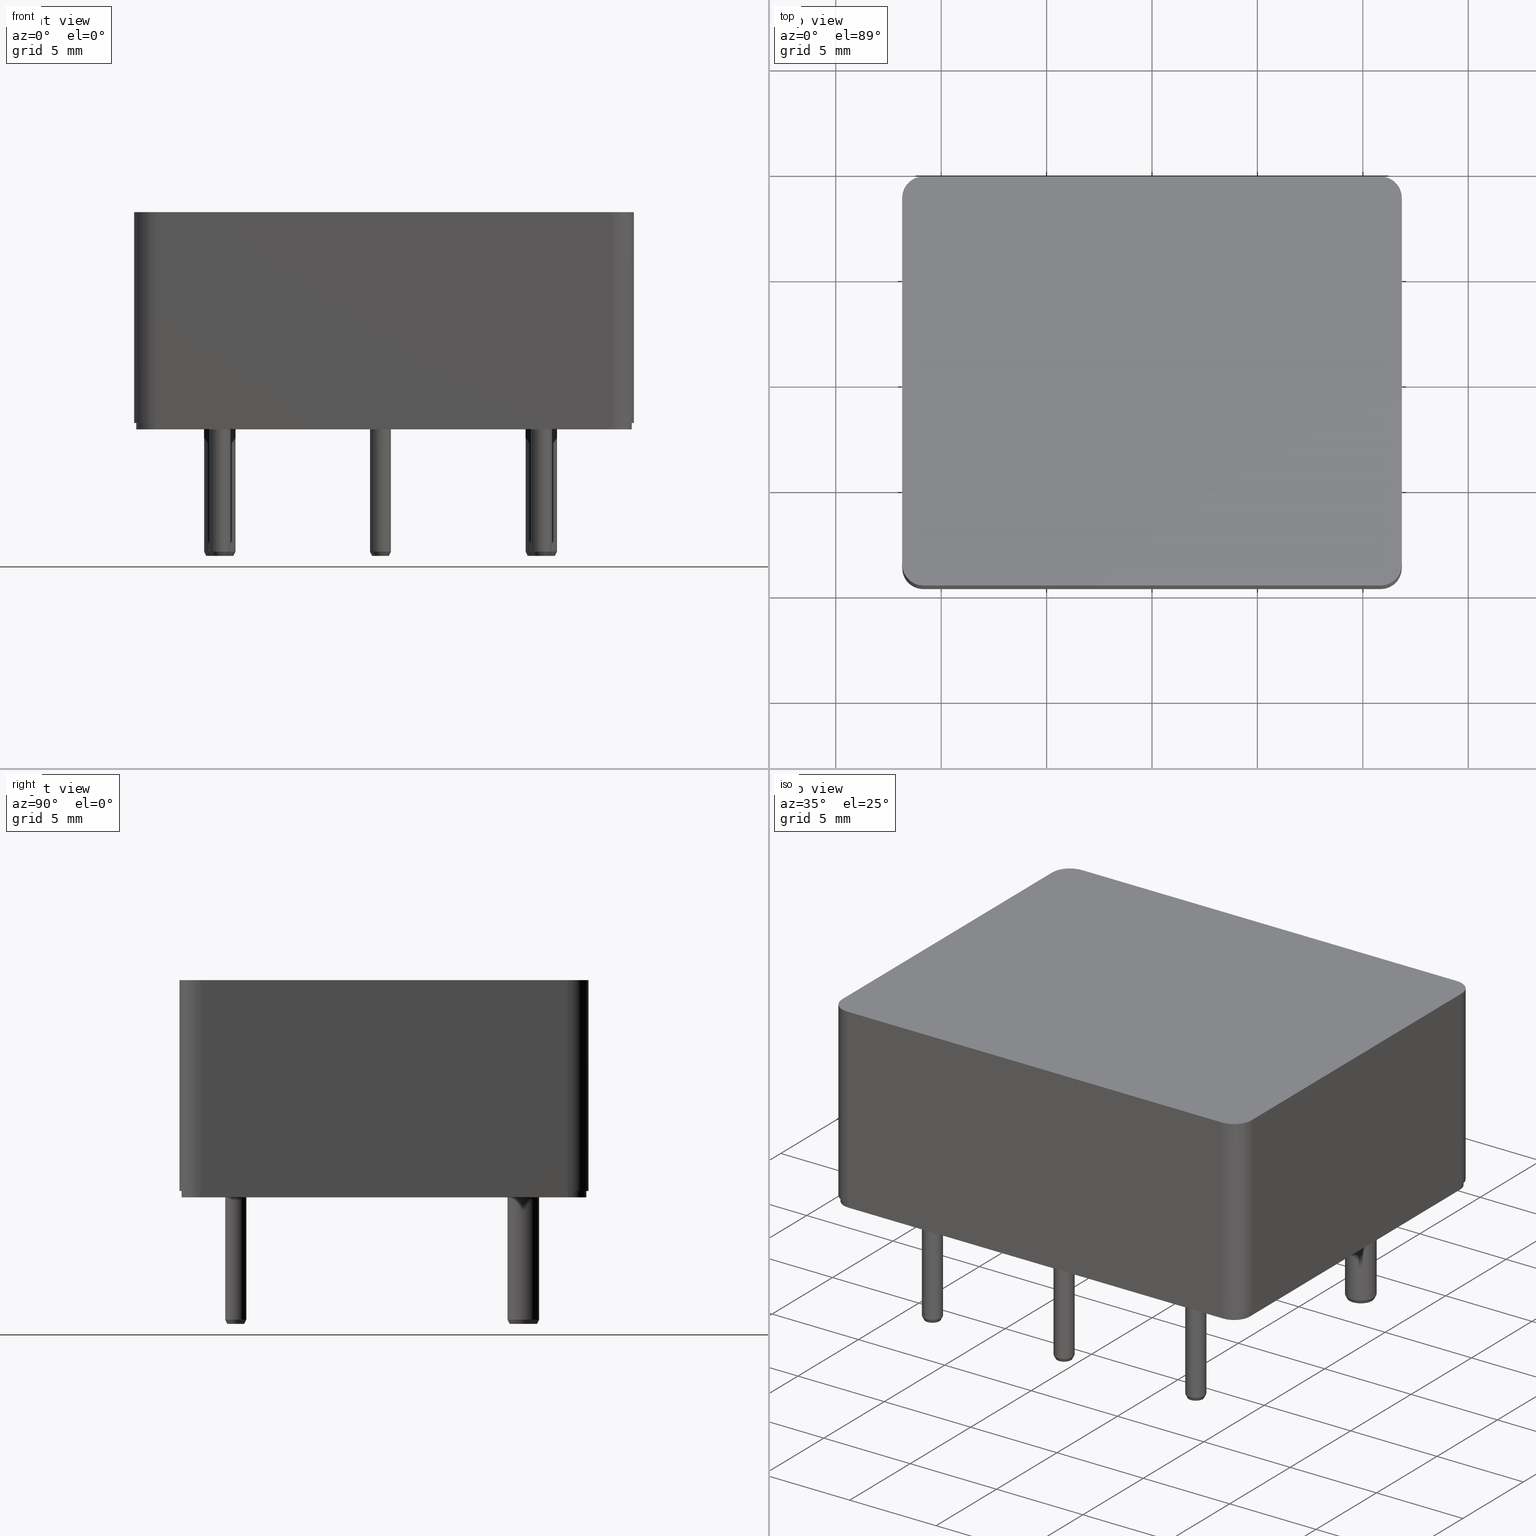
[diagram: canonical four-view strip — front | top / right | iso, engineering-drawing reading convention]
A machine part, canonical four-view strip (front | top / right | iso — engineering-drawing reading convention). The complete STEP part file that produces these views, byte-faithful:
ISO-10303-21;
HEADER;
FILE_DESCRIPTION(('STEP AP203'),
    '1');
FILE_NAME('���25-�',
    '',
    ('UNSPECIFIED'),
    ('UNSPECIFIED'),
    'C3D Converter',
    'C3D Toolkit',
    '');
FILE_SCHEMA(('CONFIG_CONTROL_DESIGN'));
ENDSEC;

DATA;
#1=PRODUCT_DEFINITION('','UNSPECIFIED',#31,#34);
#2=SHAPE_DEFINITION_REPRESENTATION(#29,#3);
#3=SHAPE_REPRESENTATION('NONE',(#4),#8);
#4=AXIS2_PLACEMENT_3D('',#5,#6,#7);
#5=CARTESIAN_POINT('',(0.,0.,0.));
#6=DIRECTION('',(0.,0.,1.));
#7=DIRECTION('',(1.,0.,0.));
#8=(GEOMETRIC_REPRESENTATION_CONTEXT(3)GLOBAL_UNCERTAINTY_ASSIGNED_CONTEXT((#10))
GLOBAL_UNIT_ASSIGNED_CONTEXT((#9,#11,#12))REPRESENTATION_CONTEXT('NONE','NONE'));
#9=(LENGTH_UNIT()NAMED_UNIT(*)SI_UNIT(.MILLI.,.METRE.));
#10=UNCERTAINTY_MEASURE_WITH_UNIT(LENGTH_MEASURE(1.E-5),#9,'NONE','NONE');
#11=(NAMED_UNIT(*)PLANE_ANGLE_UNIT()SI_UNIT($,.RADIAN.));
#12=(NAMED_UNIT(*)SI_UNIT($,.STERADIAN.)SOLID_ANGLE_UNIT());
#13=MANIFOLD_SOLID_BREP('',#14);
#14=CLOSED_SHELL('',(#51,#60,#69,#78,#87,#96,#105,#114,#123,#132,#141,#150,#159,
#168,#177,#186,#195,#204,#213,#222,#231,#240,#249,#258,#267,#276,#285,#294,#303,
#312,#321,#330,#339,#348,#357,#366,#375));
#15=COLOUR_RGB('',0.137254901960784,0.137254901960784,0.137254901960784);
#16=FILL_AREA_STYLE_COLOUR('',#15);
#17=FILL_AREA_STYLE($,(#16));
#18=SURFACE_STYLE_FILL_AREA(#17);
#19=SURFACE_SIDE_STYLE('',(#18));
#20=SURFACE_STYLE_USAGE(.BOTH.,#19);
#21=PRESENTATION_STYLE_ASSIGNMENT((#20));
#22=MECHANICAL_DESIGN_GEOMETRIC_PRESENTATION_REPRESENTATION('NONE',(#23,#59,#68,
#77,#86,#95,#104,#113,#122,#131,#140,#149,#158,#167,#176,#185,#194,#203,#212,#221,
#230,#239,#248,#257,#266,#275,#284,#293,#302,#311,#320,#329,#338,#347,#356,#365,
#374,#383,#389,#395,#401,#407,#413,#419,#425),#8);
#23=STYLED_ITEM('',(#21),#13);
#24=ADVANCED_BREP_SHAPE_REPRESENTATION('NONE',(#13),#8);
#25=SHAPE_REPRESENTATION_RELATIONSHIP('','',#3,#24);
#26=GEOMETRIC_CURVE_SET('',(#384,#390,#396,#402,#408,#414,#420));
#27=GEOMETRICALLY_BOUNDED_WIREFRAME_SHAPE_REPRESENTATION('NONE',(#26),#8);
#28=SHAPE_REPRESENTATION_RELATIONSHIP('','',#3,#27);
#29=PRODUCT_DEFINITION_SHAPE('NONE','NONE',#1);
#30=MECHANICAL_CONTEXT('NONE',#35,'mechanical');
#31=PRODUCT_DEFINITION_FORMATION_WITH_SPECIFIED_SOURCE('ANY','UNSPECIFIED',#32,.NOT_KNOWN.);
#32=PRODUCT('','\X2\041C0414041C\X0\25-\X2\0421\X0\','NONE',(#30));
#33=PRODUCT_RELATED_PRODUCT_CATEGORY('detail','',(#32));
#34=DESIGN_CONTEXT('detailed design',#35,'design');
#35=APPLICATION_CONTEXT('configuration controlled 3d designs of mechanical parts and assemblies');
#36=APPLICATION_PROTOCOL_DEFINITION('international standard','config_control_design',
1994,#35);
#37=CC_DESIGN_DATE_AND_TIME_ASSIGNMENT(#38,#42,(#1));
#38=DATE_AND_TIME(#39,#40);
#39=CALENDAR_DATE(0,1,1);
#40=LOCAL_TIME(0,0,0.,#41);
#41=COORDINATED_UNIVERSAL_TIME_OFFSET(0,0,.AHEAD.);
#42=DATE_TIME_ROLE('creation_date');
#43=CC_DESIGN_APPROVAL(#44,(#1));
#44=APPROVAL(#45,'UNSPECIFIED');
#45=APPROVAL_STATUS('not_yet_approved');
#46=APPROVAL_DATE_TIME(#47,#44);
#47=DATE_AND_TIME(#48,#49);
#48=CALENDAR_DATE(0,1,1);
#49=LOCAL_TIME(0,0,0.,#50);
#50=COORDINATED_UNIVERSAL_TIME_OFFSET(0,0,.AHEAD.);
#51=ADVANCED_FACE('',(#426,#428,#430,#432,#434,#436,#438),#440,.T.);
#52=COLOUR_RGB('',0.137254901960784,0.137254901960784,0.137254901960784);
#53=FILL_AREA_STYLE_COLOUR('',#52);
#54=FILL_AREA_STYLE($,(#53));
#55=SURFACE_STYLE_FILL_AREA(#54);
#56=SURFACE_SIDE_STYLE('',(#55));
#57=SURFACE_STYLE_USAGE(.BOTH.,#56);
#58=PRESENTATION_STYLE_ASSIGNMENT((#57));
#59=STYLED_ITEM('',(#58),#51);
#60=ADVANCED_FACE('',(#445,#447),#449,.T.);
#61=COLOUR_RGB('',0.847058823529412,0.847058823529412,0.847058823529412);
#62=FILL_AREA_STYLE_COLOUR('',#61);
#63=FILL_AREA_STYLE($,(#62));
#64=SURFACE_STYLE_FILL_AREA(#63);
#65=SURFACE_SIDE_STYLE('',(#64));
#66=SURFACE_STYLE_USAGE(.BOTH.,#65);
#67=PRESENTATION_STYLE_ASSIGNMENT((#66));
#68=STYLED_ITEM('',(#67),#60);
#69=ADVANCED_FACE('',(#454,#456),#458,.T.);
#70=COLOUR_RGB('',0.847058823529412,0.847058823529412,0.847058823529412);
#71=FILL_AREA_STYLE_COLOUR('',#70);
#72=FILL_AREA_STYLE($,(#71));
#73=SURFACE_STYLE_FILL_AREA(#72);
#74=SURFACE_SIDE_STYLE('',(#73));
#75=SURFACE_STYLE_USAGE(.BOTH.,#74);
#76=PRESENTATION_STYLE_ASSIGNMENT((#75));
#77=STYLED_ITEM('',(#76),#69);
#78=ADVANCED_FACE('',(#463,#465),#467,.T.);
#79=COLOUR_RGB('',0.847058823529412,0.847058823529412,0.847058823529412);
#80=FILL_AREA_STYLE_COLOUR('',#79);
#81=FILL_AREA_STYLE($,(#80));
#82=SURFACE_STYLE_FILL_AREA(#81);
#83=SURFACE_SIDE_STYLE('',(#82));
#84=SURFACE_STYLE_USAGE(.BOTH.,#83);
#85=PRESENTATION_STYLE_ASSIGNMENT((#84));
#86=STYLED_ITEM('',(#85),#78);
#87=ADVANCED_FACE('',(#472,#474),#476,.T.);
#88=COLOUR_RGB('',0.847058823529412,0.847058823529412,0.847058823529412);
#89=FILL_AREA_STYLE_COLOUR('',#88);
#90=FILL_AREA_STYLE($,(#89));
#91=SURFACE_STYLE_FILL_AREA(#90);
#92=SURFACE_SIDE_STYLE('',(#91));
#93=SURFACE_STYLE_USAGE(.BOTH.,#92);
#94=PRESENTATION_STYLE_ASSIGNMENT((#93));
#95=STYLED_ITEM('',(#94),#87);
#96=ADVANCED_FACE('',(#481,#483),#485,.T.);
#97=COLOUR_RGB('',0.847058823529412,0.847058823529412,0.847058823529412);
#98=FILL_AREA_STYLE_COLOUR('',#97);
#99=FILL_AREA_STYLE($,(#98));
#100=SURFACE_STYLE_FILL_AREA(#99);
#101=SURFACE_SIDE_STYLE('',(#100));
#102=SURFACE_STYLE_USAGE(.BOTH.,#101);
#103=PRESENTATION_STYLE_ASSIGNMENT((#102));
#104=STYLED_ITEM('',(#103),#96);
#105=ADVANCED_FACE('',(#490,#492),#494,.T.);
#106=COLOUR_RGB('',0.847058823529412,0.847058823529412,0.847058823529412);
#107=FILL_AREA_STYLE_COLOUR('',#106);
#108=FILL_AREA_STYLE($,(#107));
#109=SURFACE_STYLE_FILL_AREA(#108);
#110=SURFACE_SIDE_STYLE('',(#109));
#111=SURFACE_STYLE_USAGE(.BOTH.,#110);
#112=PRESENTATION_STYLE_ASSIGNMENT((#111));
#113=STYLED_ITEM('',(#112),#105);
#114=ADVANCED_FACE('',(#499),#501,.F.);
#115=COLOUR_RGB('',0.282352941176471,0.282352941176471,0.282352941176471);
#116=FILL_AREA_STYLE_COLOUR('',#115);
#117=FILL_AREA_STYLE($,(#116));
#118=SURFACE_STYLE_FILL_AREA(#117);
#119=SURFACE_SIDE_STYLE('',(#118));
#120=SURFACE_STYLE_USAGE(.BOTH.,#119);
#121=PRESENTATION_STYLE_ASSIGNMENT((#120));
#122=STYLED_ITEM('',(#121),#114);
#123=ADVANCED_FACE('',(#506),#508,.T.);
#124=COLOUR_RGB('',0.282352941176471,0.282352941176471,0.282352941176471);
#125=FILL_AREA_STYLE_COLOUR('',#124);
#126=FILL_AREA_STYLE($,(#125));
#127=SURFACE_STYLE_FILL_AREA(#126);
#128=SURFACE_SIDE_STYLE('',(#127));
#129=SURFACE_STYLE_USAGE(.BOTH.,#128);
#130=PRESENTATION_STYLE_ASSIGNMENT((#129));
#131=STYLED_ITEM('',(#130),#123);
#132=ADVANCED_FACE('',(#513),#515,.F.);
#133=COLOUR_RGB('',0.282352941176471,0.282352941176471,0.282352941176471);
#134=FILL_AREA_STYLE_COLOUR('',#133);
#135=FILL_AREA_STYLE($,(#134));
#136=SURFACE_STYLE_FILL_AREA(#135);
#137=SURFACE_SIDE_STYLE('',(#136));
#138=SURFACE_STYLE_USAGE(.BOTH.,#137);
#139=PRESENTATION_STYLE_ASSIGNMENT((#138));
#140=STYLED_ITEM('',(#139),#132);
#141=ADVANCED_FACE('',(#520),#522,.T.);
#142=COLOUR_RGB('',0.282352941176471,0.282352941176471,0.282352941176471);
#143=FILL_AREA_STYLE_COLOUR('',#142);
#144=FILL_AREA_STYLE($,(#143));
#145=SURFACE_STYLE_FILL_AREA(#144);
#146=SURFACE_SIDE_STYLE('',(#145));
#147=SURFACE_STYLE_USAGE(.BOTH.,#146);
#148=PRESENTATION_STYLE_ASSIGNMENT((#147));
#149=STYLED_ITEM('',(#148),#141);
#150=ADVANCED_FACE('',(#527),#529,.F.);
#151=COLOUR_RGB('',0.282352941176471,0.282352941176471,0.282352941176471);
#152=FILL_AREA_STYLE_COLOUR('',#151);
#153=FILL_AREA_STYLE($,(#152));
#154=SURFACE_STYLE_FILL_AREA(#153);
#155=SURFACE_SIDE_STYLE('',(#154));
#156=SURFACE_STYLE_USAGE(.BOTH.,#155);
#157=PRESENTATION_STYLE_ASSIGNMENT((#156));
#158=STYLED_ITEM('',(#157),#150);
#159=ADVANCED_FACE('',(#534),#536,.T.);
#160=COLOUR_RGB('',0.282352941176471,0.282352941176471,0.282352941176471);
#161=FILL_AREA_STYLE_COLOUR('',#160);
#162=FILL_AREA_STYLE($,(#161));
#163=SURFACE_STYLE_FILL_AREA(#162);
#164=SURFACE_SIDE_STYLE('',(#163));
#165=SURFACE_STYLE_USAGE(.BOTH.,#164);
#166=PRESENTATION_STYLE_ASSIGNMENT((#165));
#167=STYLED_ITEM('',(#166),#159);
#168=ADVANCED_FACE('',(#541),#543,.F.);
#169=COLOUR_RGB('',0.282352941176471,0.282352941176471,0.282352941176471);
#170=FILL_AREA_STYLE_COLOUR('',#169);
#171=FILL_AREA_STYLE($,(#170));
#172=SURFACE_STYLE_FILL_AREA(#171);
#173=SURFACE_SIDE_STYLE('',(#172));
#174=SURFACE_STYLE_USAGE(.BOTH.,#173);
#175=PRESENTATION_STYLE_ASSIGNMENT((#174));
#176=STYLED_ITEM('',(#175),#168);
#177=ADVANCED_FACE('',(#548),#550,.T.);
#178=COLOUR_RGB('',0.282352941176471,0.282352941176471,0.282352941176471);
#179=FILL_AREA_STYLE_COLOUR('',#178);
#180=FILL_AREA_STYLE($,(#179));
#181=SURFACE_STYLE_FILL_AREA(#180);
#182=SURFACE_SIDE_STYLE('',(#181));
#183=SURFACE_STYLE_USAGE(.BOTH.,#182);
#184=PRESENTATION_STYLE_ASSIGNMENT((#183));
#185=STYLED_ITEM('',(#184),#177);
#186=ADVANCED_FACE('',(#555),#557,.T.);
#187=COLOUR_RGB('',0.847058823529412,0.847058823529412,0.847058823529412);
#188=FILL_AREA_STYLE_COLOUR('',#187);
#189=FILL_AREA_STYLE($,(#188));
#190=SURFACE_STYLE_FILL_AREA(#189);
#191=SURFACE_SIDE_STYLE('',(#190));
#192=SURFACE_STYLE_USAGE(.BOTH.,#191);
#193=PRESENTATION_STYLE_ASSIGNMENT((#192));
#194=STYLED_ITEM('',(#193),#186);
#195=ADVANCED_FACE('',(#562),#564,.T.);
#196=COLOUR_RGB('',0.847058823529412,0.847058823529412,0.847058823529412);
#197=FILL_AREA_STYLE_COLOUR('',#196);
#198=FILL_AREA_STYLE($,(#197));
#199=SURFACE_STYLE_FILL_AREA(#198);
#200=SURFACE_SIDE_STYLE('',(#199));
#201=SURFACE_STYLE_USAGE(.BOTH.,#200);
#202=PRESENTATION_STYLE_ASSIGNMENT((#201));
#203=STYLED_ITEM('',(#202),#195);
#204=ADVANCED_FACE('',(#569),#571,.T.);
#205=COLOUR_RGB('',0.847058823529412,0.847058823529412,0.847058823529412);
#206=FILL_AREA_STYLE_COLOUR('',#205);
#207=FILL_AREA_STYLE($,(#206));
#208=SURFACE_STYLE_FILL_AREA(#207);
#209=SURFACE_SIDE_STYLE('',(#208));
#210=SURFACE_STYLE_USAGE(.BOTH.,#209);
#211=PRESENTATION_STYLE_ASSIGNMENT((#210));
#212=STYLED_ITEM('',(#211),#204);
#213=ADVANCED_FACE('',(#576),#578,.T.);
#214=COLOUR_RGB('',0.847058823529412,0.847058823529412,0.847058823529412);
#215=FILL_AREA_STYLE_COLOUR('',#214);
#216=FILL_AREA_STYLE($,(#215));
#217=SURFACE_STYLE_FILL_AREA(#216);
#218=SURFACE_SIDE_STYLE('',(#217));
#219=SURFACE_STYLE_USAGE(.BOTH.,#218);
#220=PRESENTATION_STYLE_ASSIGNMENT((#219));
#221=STYLED_ITEM('',(#220),#213);
#222=ADVANCED_FACE('',(#583),#585,.T.);
#223=COLOUR_RGB('',0.847058823529412,0.847058823529412,0.847058823529412);
#224=FILL_AREA_STYLE_COLOUR('',#223);
#225=FILL_AREA_STYLE($,(#224));
#226=SURFACE_STYLE_FILL_AREA(#225);
#227=SURFACE_SIDE_STYLE('',(#226));
#228=SURFACE_STYLE_USAGE(.BOTH.,#227);
#229=PRESENTATION_STYLE_ASSIGNMENT((#228));
#230=STYLED_ITEM('',(#229),#222);
#231=ADVANCED_FACE('',(#590),#592,.T.);
#232=COLOUR_RGB('',0.847058823529412,0.847058823529412,0.847058823529412);
#233=FILL_AREA_STYLE_COLOUR('',#232);
#234=FILL_AREA_STYLE($,(#233));
#235=SURFACE_STYLE_FILL_AREA(#234);
#236=SURFACE_SIDE_STYLE('',(#235));
#237=SURFACE_STYLE_USAGE(.BOTH.,#236);
#238=PRESENTATION_STYLE_ASSIGNMENT((#237));
#239=STYLED_ITEM('',(#238),#231);
#240=ADVANCED_FACE('',(#597,#599),#601,.T.);
#241=COLOUR_RGB('',0.282352941176471,0.282352941176471,0.282352941176471);
#242=FILL_AREA_STYLE_COLOUR('',#241);
#243=FILL_AREA_STYLE($,(#242));
#244=SURFACE_STYLE_FILL_AREA(#243);
#245=SURFACE_SIDE_STYLE('',(#244));
#246=SURFACE_STYLE_USAGE(.BOTH.,#245);
#247=PRESENTATION_STYLE_ASSIGNMENT((#246));
#248=STYLED_ITEM('',(#247),#240);
#249=ADVANCED_FACE('',(#606),#608,.T.);
#250=COLOUR_RGB('',0.137254901960784,0.137254901960784,0.137254901960784);
#251=FILL_AREA_STYLE_COLOUR('',#250);
#252=FILL_AREA_STYLE($,(#251));
#253=SURFACE_STYLE_FILL_AREA(#252);
#254=SURFACE_SIDE_STYLE('',(#253));
#255=SURFACE_STYLE_USAGE(.BOTH.,#254);
#256=PRESENTATION_STYLE_ASSIGNMENT((#255));
#257=STYLED_ITEM('',(#256),#249);
#258=ADVANCED_FACE('',(#613),#615,.T.);
#259=COLOUR_RGB('',0.137254901960784,0.137254901960784,0.137254901960784);
#260=FILL_AREA_STYLE_COLOUR('',#259);
#261=FILL_AREA_STYLE($,(#260));
#262=SURFACE_STYLE_FILL_AREA(#261);
#263=SURFACE_SIDE_STYLE('',(#262));
#264=SURFACE_STYLE_USAGE(.BOTH.,#263);
#265=PRESENTATION_STYLE_ASSIGNMENT((#264));
#266=STYLED_ITEM('',(#265),#258);
#267=ADVANCED_FACE('',(#620),#622,.T.);
#268=COLOUR_RGB('',0.137254901960784,0.137254901960784,0.137254901960784);
#269=FILL_AREA_STYLE_COLOUR('',#268);
#270=FILL_AREA_STYLE($,(#269));
#271=SURFACE_STYLE_FILL_AREA(#270);
#272=SURFACE_SIDE_STYLE('',(#271));
#273=SURFACE_STYLE_USAGE(.BOTH.,#272);
#274=PRESENTATION_STYLE_ASSIGNMENT((#273));
#275=STYLED_ITEM('',(#274),#267);
#276=ADVANCED_FACE('',(#627),#629,.T.);
#277=COLOUR_RGB('',0.137254901960784,0.137254901960784,0.137254901960784);
#278=FILL_AREA_STYLE_COLOUR('',#277);
#279=FILL_AREA_STYLE($,(#278));
#280=SURFACE_STYLE_FILL_AREA(#279);
#281=SURFACE_SIDE_STYLE('',(#280));
#282=SURFACE_STYLE_USAGE(.BOTH.,#281);
#283=PRESENTATION_STYLE_ASSIGNMENT((#282));
#284=STYLED_ITEM('',(#283),#276);
#285=ADVANCED_FACE('',(#634),#636,.T.);
#286=COLOUR_RGB('',0.137254901960784,0.137254901960784,0.137254901960784);
#287=FILL_AREA_STYLE_COLOUR('',#286);
#288=FILL_AREA_STYLE($,(#287));
#289=SURFACE_STYLE_FILL_AREA(#288);
#290=SURFACE_SIDE_STYLE('',(#289));
#291=SURFACE_STYLE_USAGE(.BOTH.,#290);
#292=PRESENTATION_STYLE_ASSIGNMENT((#291));
#293=STYLED_ITEM('',(#292),#285);
#294=ADVANCED_FACE('',(#641),#643,.T.);
#295=COLOUR_RGB('',0.137254901960784,0.137254901960784,0.137254901960784);
#296=FILL_AREA_STYLE_COLOUR('',#295);
#297=FILL_AREA_STYLE($,(#296));
#298=SURFACE_STYLE_FILL_AREA(#297);
#299=SURFACE_SIDE_STYLE('',(#298));
#300=SURFACE_STYLE_USAGE(.BOTH.,#299);
#301=PRESENTATION_STYLE_ASSIGNMENT((#300));
#302=STYLED_ITEM('',(#301),#294);
#303=ADVANCED_FACE('',(#648),#650,.T.);
#304=COLOUR_RGB('',0.137254901960784,0.137254901960784,0.137254901960784);
#305=FILL_AREA_STYLE_COLOUR('',#304);
#306=FILL_AREA_STYLE($,(#305));
#307=SURFACE_STYLE_FILL_AREA(#306);
#308=SURFACE_SIDE_STYLE('',(#307));
#309=SURFACE_STYLE_USAGE(.BOTH.,#308);
#310=PRESENTATION_STYLE_ASSIGNMENT((#309));
#311=STYLED_ITEM('',(#310),#303);
#312=ADVANCED_FACE('',(#655),#657,.T.);
#313=COLOUR_RGB('',0.137254901960784,0.137254901960784,0.137254901960784);
#314=FILL_AREA_STYLE_COLOUR('',#313);
#315=FILL_AREA_STYLE($,(#314));
#316=SURFACE_STYLE_FILL_AREA(#315);
#317=SURFACE_SIDE_STYLE('',(#316));
#318=SURFACE_STYLE_USAGE(.BOTH.,#317);
#319=PRESENTATION_STYLE_ASSIGNMENT((#318));
#320=STYLED_ITEM('',(#319),#312);
#321=ADVANCED_FACE('',(#662),#664,.F.);
#322=COLOUR_RGB('',0.137254901960784,0.137254901960784,0.137254901960784);
#323=FILL_AREA_STYLE_COLOUR('',#322);
#324=FILL_AREA_STYLE($,(#323));
#325=SURFACE_STYLE_FILL_AREA(#324);
#326=SURFACE_SIDE_STYLE('',(#325));
#327=SURFACE_STYLE_USAGE(.BOTH.,#326);
#328=PRESENTATION_STYLE_ASSIGNMENT((#327));
#329=STYLED_ITEM('',(#328),#321);
#330=ADVANCED_FACE('',(#669,#671),#673,.T.);
#331=COLOUR_RGB('',0.847058823529412,0.847058823529412,0.847058823529412);
#332=FILL_AREA_STYLE_COLOUR('',#331);
#333=FILL_AREA_STYLE($,(#332));
#334=SURFACE_STYLE_FILL_AREA(#333);
#335=SURFACE_SIDE_STYLE('',(#334));
#336=SURFACE_STYLE_USAGE(.BOTH.,#335);
#337=PRESENTATION_STYLE_ASSIGNMENT((#336));
#338=STYLED_ITEM('',(#337),#330);
#339=ADVANCED_FACE('',(#678,#680),#682,.T.);
#340=COLOUR_RGB('',0.847058823529412,0.847058823529412,0.847058823529412);
#341=FILL_AREA_STYLE_COLOUR('',#340);
#342=FILL_AREA_STYLE($,(#341));
#343=SURFACE_STYLE_FILL_AREA(#342);
#344=SURFACE_SIDE_STYLE('',(#343));
#345=SURFACE_STYLE_USAGE(.BOTH.,#344);
#346=PRESENTATION_STYLE_ASSIGNMENT((#345));
#347=STYLED_ITEM('',(#346),#339);
#348=ADVANCED_FACE('',(#687,#689),#691,.T.);
#349=COLOUR_RGB('',0.847058823529412,0.847058823529412,0.847058823529412);
#350=FILL_AREA_STYLE_COLOUR('',#349);
#351=FILL_AREA_STYLE($,(#350));
#352=SURFACE_STYLE_FILL_AREA(#351);
#353=SURFACE_SIDE_STYLE('',(#352));
#354=SURFACE_STYLE_USAGE(.BOTH.,#353);
#355=PRESENTATION_STYLE_ASSIGNMENT((#354));
#356=STYLED_ITEM('',(#355),#348);
#357=ADVANCED_FACE('',(#696,#698),#700,.T.);
#358=COLOUR_RGB('',0.847058823529412,0.847058823529412,0.847058823529412);
#359=FILL_AREA_STYLE_COLOUR('',#358);
#360=FILL_AREA_STYLE($,(#359));
#361=SURFACE_STYLE_FILL_AREA(#360);
#362=SURFACE_SIDE_STYLE('',(#361));
#363=SURFACE_STYLE_USAGE(.BOTH.,#362);
#364=PRESENTATION_STYLE_ASSIGNMENT((#363));
#365=STYLED_ITEM('',(#364),#357);
#366=ADVANCED_FACE('',(#705,#707),#709,.T.);
#367=COLOUR_RGB('',0.847058823529412,0.847058823529412,0.847058823529412);
#368=FILL_AREA_STYLE_COLOUR('',#367);
#369=FILL_AREA_STYLE($,(#368));
#370=SURFACE_STYLE_FILL_AREA(#369);
#371=SURFACE_SIDE_STYLE('',(#370));
#372=SURFACE_STYLE_USAGE(.BOTH.,#371);
#373=PRESENTATION_STYLE_ASSIGNMENT((#372));
#374=STYLED_ITEM('',(#373),#366);
#375=ADVANCED_FACE('',(#714,#716),#718,.T.);
#376=COLOUR_RGB('',0.847058823529412,0.847058823529412,0.847058823529412);
#377=FILL_AREA_STYLE_COLOUR('',#376);
#378=FILL_AREA_STYLE($,(#377));
#379=SURFACE_STYLE_FILL_AREA(#378);
#380=SURFACE_SIDE_STYLE('',(#379));
#381=SURFACE_STYLE_USAGE(.BOTH.,#380);
#382=PRESENTATION_STYLE_ASSIGNMENT((#381));
#383=STYLED_ITEM('',(#382),#375);
#384=CIRCLE('',#723,0.5);
#385=COLOUR_RGB('',0.2,0.674509803921569,0.792156862745098);
#386=PRESENTATION_STYLE_ASSIGNMENT((#387));
#387=CURVE_STYLE('',#388,POSITIVE_LENGTH_MEASURE(0.1),#385);
#388=PRE_DEFINED_CURVE_FONT('continuous');
#389=STYLED_ITEM('',(#386),#384);
#390=CIRCLE('',#727,0.5);
#391=COLOUR_RGB('',0.2,0.674509803921569,0.792156862745098);
#392=PRESENTATION_STYLE_ASSIGNMENT((#393));
#393=CURVE_STYLE('',#394,POSITIVE_LENGTH_MEASURE(0.1),#391);
#394=PRE_DEFINED_CURVE_FONT('continuous');
#395=STYLED_ITEM('',(#392),#390);
#396=CIRCLE('',#731,0.5);
#397=COLOUR_RGB('',0.2,0.674509803921569,0.792156862745098);
#398=PRESENTATION_STYLE_ASSIGNMENT((#399));
#399=CURVE_STYLE('',#400,POSITIVE_LENGTH_MEASURE(0.1),#397);
#400=PRE_DEFINED_CURVE_FONT('continuous');
#401=STYLED_ITEM('',(#398),#396);
#402=CIRCLE('',#735,0.75);
#403=COLOUR_RGB('',0.2,0.674509803921569,0.792156862745098);
#404=PRESENTATION_STYLE_ASSIGNMENT((#405));
#405=CURVE_STYLE('',#406,POSITIVE_LENGTH_MEASURE(0.1),#403);
#406=PRE_DEFINED_CURVE_FONT('continuous');
#407=STYLED_ITEM('',(#404),#402);
#408=CIRCLE('',#739,0.5);
#409=COLOUR_RGB('',0.2,0.674509803921569,0.792156862745098);
#410=PRESENTATION_STYLE_ASSIGNMENT((#411));
#411=CURVE_STYLE('',#412,POSITIVE_LENGTH_MEASURE(0.1),#409);
#412=PRE_DEFINED_CURVE_FONT('continuous');
#413=STYLED_ITEM('',(#410),#408);
#414=CIRCLE('',#743,0.75);
#415=COLOUR_RGB('',0.2,0.674509803921569,0.792156862745098);
#416=PRESENTATION_STYLE_ASSIGNMENT((#417));
#417=CURVE_STYLE('',#418,POSITIVE_LENGTH_MEASURE(0.1),#415);
#418=PRE_DEFINED_CURVE_FONT('continuous');
#419=STYLED_ITEM('',(#416),#414);
#420=POLYLINE('',(#747,#748,#749,#750,#751));
#421=COLOUR_RGB('',0.2,0.674509803921569,0.792156862745098);
#422=PRESENTATION_STYLE_ASSIGNMENT((#423));
#423=CURVE_STYLE('',#424,POSITIVE_LENGTH_MEASURE(0.1),#421);
#424=PRE_DEFINED_CURVE_FONT('continuous');
#425=STYLED_ITEM('',(#422),#420);
#426=FACE_BOUND('',#427,.T.);
#427=EDGE_LOOP('',(#752,#753,#754,#755,#756,#757,#758,#759));
#428=FACE_BOUND('',#429,.T.);
#429=EDGE_LOOP('',(#760));
#430=FACE_BOUND('',#431,.T.);
#431=EDGE_LOOP('',(#761));
#432=FACE_BOUND('',#433,.T.);
#433=EDGE_LOOP('',(#762));
#434=FACE_BOUND('',#435,.T.);
#435=EDGE_LOOP('',(#763));
#436=FACE_BOUND('',#437,.T.);
#437=EDGE_LOOP('',(#764));
#438=FACE_BOUND('',#439,.T.);
#439=EDGE_LOOP('',(#765));
#440=PLANE('',#441);
#441=AXIS2_PLACEMENT_3D('',#442,#443,#444);
#442=CARTESIAN_POINT('',(0.,0.,0.));
#443=DIRECTION('',(1.22464679914735E-16,0.,-1.));
#444=DIRECTION('',(-6.12323399573677E-17,1.,-7.49879891330928E-33));
#445=FACE_OUTER_BOUND('',#446,.T.);
#446=EDGE_LOOP('',(#766));
#447=FACE_OUTER_BOUND('',#448,.T.);
#448=EDGE_LOOP('',(#767));
#449=CYLINDRICAL_SURFACE('',#450,0.5);
#450=AXIS2_PLACEMENT_3D('',#451,#452,#453);
#451=CARTESIAN_POINT('',(-7.79,-7.03,-9.53999856535788E-16));
#452=DIRECTION('',(1.22464679914735E-16,0.,-1.));
#453=DIRECTION('',(-6.12323399573677E-17,1.,-7.49879891330928E-33));
#454=FACE_OUTER_BOUND('',#455,.T.);
#455=EDGE_LOOP('',(#768));
#456=FACE_OUTER_BOUND('',#457,.T.);
#457=EDGE_LOOP('',(#769));
#458=CYLINDRICAL_SURFACE('',#459,0.5);
#459=AXIS2_PLACEMENT_3D('',#460,#461,#462);
#460=CARTESIAN_POINT('',(-0.17,6.61,-2.0818995585505E-17));
#461=DIRECTION('',(1.22464679914735E-16,0.,-1.));
#462=DIRECTION('',(-6.12323399573677E-17,1.,-7.49879891330928E-33));
#463=FACE_OUTER_BOUND('',#464,.T.);
#464=EDGE_LOOP('',(#770));
#465=FACE_OUTER_BOUND('',#466,.T.);
#466=EDGE_LOOP('',(#771));
#467=CYLINDRICAL_SURFACE('',#468,0.5);
#468=AXIS2_PLACEMENT_3D('',#469,#470,#471);
#469=CARTESIAN_POINT('',(7.46,-7.03,9.13586512163925E-16));
#470=DIRECTION('',(1.22464679914735E-16,0.,-1.));
#471=DIRECTION('',(-6.12323399573677E-17,1.,-7.49879891330928E-33));
#472=FACE_OUTER_BOUND('',#473,.T.);
#473=EDGE_LOOP('',(#772));
#474=FACE_OUTER_BOUND('',#475,.T.);
#475=EDGE_LOOP('',(#773));
#476=CYLINDRICAL_SURFACE('',#477,0.5);
#477=AXIS2_PLACEMENT_3D('',#478,#479,#480);
#478=CARTESIAN_POINT('',(-0.169999999999999,-7.03,-2.08189955855049E-17));
#479=DIRECTION('',(1.22464679914735E-16,0.,-1.));
#480=DIRECTION('',(-6.12323399573677E-17,1.,-7.49879891330928E-33));
#481=FACE_OUTER_BOUND('',#482,.T.);
#482=EDGE_LOOP('',(#774));
#483=FACE_OUTER_BOUND('',#484,.T.);
#484=EDGE_LOOP('',(#775));
#485=CYLINDRICAL_SURFACE('',#486,0.75);
#486=AXIS2_PLACEMENT_3D('',#487,#488,#489);
#487=CARTESIAN_POINT('',(-7.79,6.61,-9.53999856535788E-16));
#488=DIRECTION('',(1.22464679914735E-16,0.,-1.));
#489=DIRECTION('',(-6.12323399573676E-17,1.,-7.49879891330926E-33));
#490=FACE_OUTER_BOUND('',#491,.T.);
#491=EDGE_LOOP('',(#776));
#492=FACE_OUTER_BOUND('',#493,.T.);
#493=EDGE_LOOP('',(#777));
#494=CYLINDRICAL_SURFACE('',#495,0.75);
#495=AXIS2_PLACEMENT_3D('',#496,#497,#498);
#496=CARTESIAN_POINT('',(7.46,6.61,9.13586512163925E-16));
#497=DIRECTION('',(1.22464679914735E-16,0.,-1.));
#498=DIRECTION('',(-6.12323399573676E-17,1.,-7.49879891330926E-33));
#499=FACE_BOUND('',#500,.T.);
#500=EDGE_LOOP('',(#778,#779,#780,#781));
#501=PLANE('',#502);
#502=AXIS2_PLACEMENT_3D('',#503,#504,#505);
#503=CARTESIAN_POINT('',(-11.75,8.7,0.299999999999999));
#504=DIRECTION('',(1.,0.,0.));
#505=DIRECTION('',(0.,-1.,0.));
#506=FACE_BOUND('',#507,.T.);
#507=EDGE_LOOP('',(#782,#783,#784,#785));
#508=CYLINDRICAL_SURFACE('',#509,0.9);
#509=AXIS2_PLACEMENT_3D('',#510,#511,#512);
#510=CARTESIAN_POINT('',(-10.85,8.7,0.299999999999999));
#511=DIRECTION('',(-1.22464679914735E-16,0.,1.));
#512=DIRECTION('',(-6.12323399573677E-17,1.,-7.49879891330928E-33));
#513=FACE_BOUND('',#514,.T.);
#514=EDGE_LOOP('',(#786,#787,#788,#789));
#515=PLANE('',#516);
#516=AXIS2_PLACEMENT_3D('',#517,#518,#519);
#517=CARTESIAN_POINT('',(10.85,9.6,0.300000000000001));
#518=DIRECTION('',(0.,-1.,0.));
#519=DIRECTION('',(-1.,0.,-1.22789643276515E-16));
#520=FACE_BOUND('',#521,.T.);
#521=EDGE_LOOP('',(#790,#791,#792,#793));
#522=CYLINDRICAL_SURFACE('',#523,0.9);
#523=AXIS2_PLACEMENT_3D('',#524,#525,#526);
#524=CARTESIAN_POINT('',(10.85,8.7,0.300000000000001));
#525=DIRECTION('',(-1.22464679914735E-16,0.,1.));
#526=DIRECTION('',(1.,6.12323399573677E-17,1.22464679914735E-16));
#527=FACE_BOUND('',#528,.T.);
#528=EDGE_LOOP('',(#794,#795,#796,#797));
#529=PLANE('',#530);
#530=AXIS2_PLACEMENT_3D('',#531,#532,#533);
#531=CARTESIAN_POINT('',(11.75,-8.7,0.300000000000001));
#532=DIRECTION('',(-1.,0.,0.));
#533=DIRECTION('',(0.,1.,0.));
#534=FACE_BOUND('',#535,.T.);
#535=EDGE_LOOP('',(#798,#799,#800,#801));
#536=CYLINDRICAL_SURFACE('',#537,0.899999999999998);
#537=AXIS2_PLACEMENT_3D('',#538,#539,#540);
#538=CARTESIAN_POINT('',(10.85,-8.7,0.300000000000001));
#539=DIRECTION('',(-1.22464679914735E-16,0.,1.));
#540=DIRECTION('',(-1.91249748159847E-15,-1.,-2.34213391921694E-31));
#541=FACE_BOUND('',#542,.T.);
#542=EDGE_LOOP('',(#802,#803,#804,#805));
#543=PLANE('',#544);
#544=AXIS2_PLACEMENT_3D('',#545,#546,#547);
#545=CARTESIAN_POINT('',(-10.85,-9.6,0.299999999999999));
#546=DIRECTION('',(0.,1.,0.));
#547=DIRECTION('',(1.,0.,1.22789643276515E-16));
#548=FACE_BOUND('',#549,.T.);
#549=EDGE_LOOP('',(#806,#807,#808,#809));
#550=CYLINDRICAL_SURFACE('',#551,0.9);
#551=AXIS2_PLACEMENT_3D('',#552,#553,#554);
#552=CARTESIAN_POINT('',(-10.85,-8.7,0.299999999999999));
#553=DIRECTION('',(-1.22464679914735E-16,0.,1.));
#554=DIRECTION('',(-1.,-6.12323399573677E-17,-1.22464679914735E-16));
#555=FACE_BOUND('',#556,.T.);
#556=EDGE_LOOP('',(#810));
#557=PLANE('',#558);
#558=AXIS2_PLACEMENT_3D('',#559,#560,#561);
#559=CARTESIAN_POINT('',(0.,0.,-6.));
#560=DIRECTION('',(1.22464679914735E-16,0.,-1.));
#561=DIRECTION('',(-6.12323399573677E-17,1.,-7.49879891330928E-33));
#562=FACE_BOUND('',#563,.T.);
#563=EDGE_LOOP('',(#811));
#564=PLANE('',#565);
#565=AXIS2_PLACEMENT_3D('',#566,#567,#568);
#566=CARTESIAN_POINT('',(0.,0.,-6.));
#567=DIRECTION('',(1.22464679914735E-16,0.,-1.));
#568=DIRECTION('',(-6.12323399573677E-17,1.,-7.49879891330928E-33));
#569=FACE_BOUND('',#570,.T.);
#570=EDGE_LOOP('',(#812));
#571=PLANE('',#572);
#572=AXIS2_PLACEMENT_3D('',#573,#574,#575);
#573=CARTESIAN_POINT('',(0.,0.,-6.));
#574=DIRECTION('',(1.22464679914735E-16,0.,-1.));
#575=DIRECTION('',(-6.12323399573677E-17,1.,-7.49879891330928E-33));
#576=FACE_BOUND('',#577,.T.);
#577=EDGE_LOOP('',(#813));
#578=PLANE('',#579);
#579=AXIS2_PLACEMENT_3D('',#580,#581,#582);
#580=CARTESIAN_POINT('',(0.,0.,-6.));
#581=DIRECTION('',(1.22464679914735E-16,0.,-1.));
#582=DIRECTION('',(-6.12323399573677E-17,1.,-7.49879891330928E-33));
#583=FACE_BOUND('',#584,.T.);
#584=EDGE_LOOP('',(#814));
#585=PLANE('',#586);
#586=AXIS2_PLACEMENT_3D('',#587,#588,#589);
#587=CARTESIAN_POINT('',(0.,0.,-6.));
#588=DIRECTION('',(1.22464679914735E-16,0.,-1.));
#589=DIRECTION('',(-6.12323399573677E-17,1.,-7.49879891330928E-33));
#590=FACE_BOUND('',#591,.T.);
#591=EDGE_LOOP('',(#815));
#592=PLANE('',#593);
#593=AXIS2_PLACEMENT_3D('',#594,#595,#596);
#594=CARTESIAN_POINT('',(0.,0.,-6.));
#595=DIRECTION('',(1.22464679914735E-16,0.,-1.));
#596=DIRECTION('',(-6.12323399573677E-17,1.,-7.49879891330928E-33));
#597=FACE_BOUND('',#598,.T.);
#598=EDGE_LOOP('',(#816,#817,#818,#819,#820,#821,#822,#823));
#599=FACE_BOUND('',#600,.T.);
#600=EDGE_LOOP('',(#824,#825,#826,#827,#828,#829,#830,#831));
#601=PLANE('',#602);
#602=AXIS2_PLACEMENT_3D('',#603,#604,#605);
#603=CARTESIAN_POINT('',(0.,0.,0.3));
#604=DIRECTION('',(1.22464679914735E-16,0.,-1.));
#605=DIRECTION('',(-6.12323399573677E-17,1.,-7.49879891330928E-33));
#606=FACE_BOUND('',#607,.T.);
#607=EDGE_LOOP('',(#832,#833,#834,#835));
#608=PLANE('',#609);
#609=AXIS2_PLACEMENT_3D('',#610,#611,#612);
#610=CARTESIAN_POINT('',(11.85,9.7,10.3));
#611=DIRECTION('',(1.,9.15647855360954E-17,1.72461829067985E-16));
#612=DIRECTION('',(9.15647855360954E-17,-1.,0.));
#613=FACE_BOUND('',#614,.T.);
#614=EDGE_LOOP('',(#836,#837,#838,#839));
#615=CYLINDRICAL_SURFACE('',#616,1.);
#616=AXIS2_PLACEMENT_3D('',#617,#618,#619);
#617=CARTESIAN_POINT('',(10.85,-8.7,14.3));
#618=DIRECTION('',(-9.70686797486476E-17,0.,1.));
#619=DIRECTION('',(0.,-1.,0.));
#620=FACE_BOUND('',#621,.T.);
#621=EDGE_LOOP('',(#840,#841,#842,#843));
#622=PLANE('',#623);
#623=AXIS2_PLACEMENT_3D('',#624,#625,#626);
#624=CARTESIAN_POINT('',(11.85,-9.7,10.3));
#625=DIRECTION('',(0.,-1.,0.));
#626=DIRECTION('',(-1.,0.,-1.49903530751076E-16));
#627=FACE_BOUND('',#628,.T.);
#628=EDGE_LOOP('',(#844,#845,#846,#847));
#629=CYLINDRICAL_SURFACE('',#630,1.);
#630=AXIS2_PLACEMENT_3D('',#631,#632,#633);
#631=CARTESIAN_POINT('',(-10.85,-8.7,14.3));
#632=DIRECTION('',(9.70686797486476E-17,0.,1.));
#633=DIRECTION('',(-1.,0.,9.70686797486476E-17));
#634=FACE_BOUND('',#635,.T.);
#635=EDGE_LOOP('',(#848,#849,#850,#851));
#636=PLANE('',#637);
#637=AXIS2_PLACEMENT_3D('',#638,#639,#640);
#638=CARTESIAN_POINT('',(-11.85,-9.7,10.3));
#639=DIRECTION('',(-1.,-9.15647855360954E-17,0.));
#640=DIRECTION('',(-9.15647855360954E-17,1.,0.));
#641=FACE_BOUND('',#642,.T.);
#642=EDGE_LOOP('',(#852,#853,#854,#855));
#643=CYLINDRICAL_SURFACE('',#644,1.);
#644=AXIS2_PLACEMENT_3D('',#645,#646,#647);
#645=CARTESIAN_POINT('',(-10.85,8.7,14.3));
#646=DIRECTION('',(0.,0.,1.));
#647=DIRECTION('',(0.,1.,0.));
#648=FACE_BOUND('',#649,.T.);
#649=EDGE_LOOP('',(#856,#857,#858,#859));
#650=PLANE('',#651);
#651=AXIS2_PLACEMENT_3D('',#652,#653,#654);
#652=CARTESIAN_POINT('',(-11.85,9.7,10.3));
#653=DIRECTION('',(0.,1.,0.));
#654=DIRECTION('',(1.,0.,1.49903530751076E-16));
#655=FACE_BOUND('',#656,.T.);
#656=EDGE_LOOP('',(#860,#861,#862,#863));
#657=CYLINDRICAL_SURFACE('',#658,1.);
#658=AXIS2_PLACEMENT_3D('',#659,#660,#661);
#659=CARTESIAN_POINT('',(10.85,8.7,14.3));
#660=DIRECTION('',(-9.70686797486476E-17,0.,1.));
#661=DIRECTION('',(1.,0.,9.70686797486476E-17));
#662=FACE_BOUND('',#663,.T.);
#663=EDGE_LOOP('',(#864,#865,#866,#867,#868,#869,#870,#871));
#664=PLANE('',#665);
#665=AXIS2_PLACEMENT_3D('',#666,#667,#668);
#666=CARTESIAN_POINT('',(0.,0.,10.3));
#667=DIRECTION('',(1.22464679914735E-16,0.,-1.));
#668=DIRECTION('',(-6.12323399573677E-17,1.,-7.49879891330928E-33));
#669=FACE_OUTER_BOUND('',#670,.T.);
#670=EDGE_LOOP('',(#872));
#671=FACE_OUTER_BOUND('',#672,.T.);
#672=EDGE_LOOP('',(#873));
#673=CONICAL_SURFACE('',#674,0.7,0.463647609000804);
#674=AXIS2_PLACEMENT_3D('',#675,#676,#677);
#675=CARTESIAN_POINT('',(-7.79,6.61,-5.9));
#676=DIRECTION('',(-1.22464679914735E-16,0.,1.));
#677=DIRECTION('',(0.,-1.,0.));
#678=FACE_OUTER_BOUND('',#679,.T.);
#679=EDGE_LOOP('',(#874));
#680=FACE_OUTER_BOUND('',#681,.T.);
#681=EDGE_LOOP('',(#875));
#682=CONICAL_SURFACE('',#683,0.7,0.463647609000804);
#683=AXIS2_PLACEMENT_3D('',#684,#685,#686);
#684=CARTESIAN_POINT('',(7.46,6.61,-5.9));
#685=DIRECTION('',(-1.22464679914735E-16,0.,1.));
#686=DIRECTION('',(1.26882631385732E-15,-1.,1.5538640839393E-31));
#687=FACE_OUTER_BOUND('',#688,.T.);
#688=EDGE_LOOP('',(#876));
#689=FACE_OUTER_BOUND('',#690,.T.);
#690=EDGE_LOOP('',(#877));
#691=CONICAL_SURFACE('',#692,0.449999999999999,0.463647609000804);
#692=AXIS2_PLACEMENT_3D('',#693,#694,#695);
#693=CARTESIAN_POINT('',(-7.79,-7.03,-5.9));
#694=DIRECTION('',(-1.22464679914735E-16,0.,1.));
#695=DIRECTION('',(0.,-1.,0.));
#696=FACE_OUTER_BOUND('',#697,.T.);
#697=EDGE_LOOP('',(#878));
#698=FACE_OUTER_BOUND('',#699,.T.);
#699=EDGE_LOOP('',(#879));
#700=CONICAL_SURFACE('',#701,0.449999999999999,0.463647609000804);
#701=AXIS2_PLACEMENT_3D('',#702,#703,#704);
#702=CARTESIAN_POINT('',(-0.169999999999999,6.61,-5.9));
#703=DIRECTION('',(-1.22464679914735E-16,0.,1.));
#704=DIRECTION('',(6.16790569236198E-17,-1.,7.55350596359382E-33));
#705=FACE_OUTER_BOUND('',#706,.T.);
#706=EDGE_LOOP('',(#880));
#707=FACE_OUTER_BOUND('',#708,.T.);
#708=EDGE_LOOP('',(#881));
#709=CONICAL_SURFACE('',#710,0.449999999999999,0.463647609000804);
#710=AXIS2_PLACEMENT_3D('',#711,#712,#713);
#711=CARTESIAN_POINT('',(7.46,-7.03,-5.9));
#712=DIRECTION('',(-1.22464679914735E-16,0.,1.));
#713=DIRECTION('',(0.,-1.,0.));
#714=FACE_OUTER_BOUND('',#715,.T.);
#715=EDGE_LOOP('',(#882));
#716=FACE_OUTER_BOUND('',#717,.T.);
#717=EDGE_LOOP('',(#883));
#718=CONICAL_SURFACE('',#719,0.449999999999999,0.463647609000804);
#719=AXIS2_PLACEMENT_3D('',#720,#721,#722);
#720=CARTESIAN_POINT('',(-0.169999999999998,-7.03,-5.9));
#721=DIRECTION('',(-1.22464679914735E-16,0.,1.));
#722=DIRECTION('',(1.2335811384724E-16,-1.,1.51070119271877E-32));
#723=AXIS2_PLACEMENT_3D('',#724,#725,#726);
#724=CARTESIAN_POINT('',(-7.79,-7.03,0.));
#725=DIRECTION('',(0.,0.,-1.));
#726=DIRECTION('',(0.,1.,0.));
#727=AXIS2_PLACEMENT_3D('',#728,#729,#730);
#728=CARTESIAN_POINT('',(-0.169999999999999,-7.03,0.));
#729=DIRECTION('',(0.,0.,-1.));
#730=DIRECTION('',(-2.22044604925031E-16,1.,0.));
#731=AXIS2_PLACEMENT_3D('',#732,#733,#734);
#732=CARTESIAN_POINT('',(7.46,-7.03,0.));
#733=DIRECTION('',(0.,0.,-1.));
#734=DIRECTION('',(0.,1.,0.));
#735=AXIS2_PLACEMENT_3D('',#736,#737,#738);
#736=CARTESIAN_POINT('',(7.46,6.61,0.));
#737=DIRECTION('',(0.,0.,-1.));
#738=DIRECTION('',(-1.1842378929335E-15,1.,0.));
#739=AXIS2_PLACEMENT_3D('',#740,#741,#742);
#740=CARTESIAN_POINT('',(-0.17,6.61,0.));
#741=DIRECTION('',(0.,0.,-1.));
#742=DIRECTION('',(-2.22044604925031E-16,1.,0.));
#743=AXIS2_PLACEMENT_3D('',#744,#745,#746);
#744=CARTESIAN_POINT('',(-7.79,6.61,0.));
#745=DIRECTION('',(0.,0.,-1.));
#746=DIRECTION('',(0.,1.,0.));
#747=CARTESIAN_POINT('',(11.85,-9.7,0.));
#748=CARTESIAN_POINT('',(11.85,9.7,0.));
#749=CARTESIAN_POINT('',(-11.85,9.7,0.));
#750=CARTESIAN_POINT('',(-11.85,-9.7,0.));
#751=CARTESIAN_POINT('',(11.85,-9.7,0.));
#752=ORIENTED_EDGE('',*,*,#884,.T.);
#753=ORIENTED_EDGE('',*,*,#885,.T.);
#754=ORIENTED_EDGE('',*,*,#886,.T.);
#755=ORIENTED_EDGE('',*,*,#887,.T.);
#756=ORIENTED_EDGE('',*,*,#888,.T.);
#757=ORIENTED_EDGE('',*,*,#889,.T.);
#758=ORIENTED_EDGE('',*,*,#890,.T.);
#759=ORIENTED_EDGE('',*,*,#891,.T.);
#760=ORIENTED_EDGE('',*,*,#892,.F.);
#761=ORIENTED_EDGE('',*,*,#893,.F.);
#762=ORIENTED_EDGE('',*,*,#894,.F.);
#763=ORIENTED_EDGE('',*,*,#895,.F.);
#764=ORIENTED_EDGE('',*,*,#896,.F.);
#765=ORIENTED_EDGE('',*,*,#897,.F.);
#766=ORIENTED_EDGE('',*,*,#897,.T.);
#767=ORIENTED_EDGE('',*,*,#898,.F.);
#768=ORIENTED_EDGE('',*,*,#896,.T.);
#769=ORIENTED_EDGE('',*,*,#899,.F.);
#770=ORIENTED_EDGE('',*,*,#895,.T.);
#771=ORIENTED_EDGE('',*,*,#900,.F.);
#772=ORIENTED_EDGE('',*,*,#894,.T.);
#773=ORIENTED_EDGE('',*,*,#901,.F.);
#774=ORIENTED_EDGE('',*,*,#893,.T.);
#775=ORIENTED_EDGE('',*,*,#902,.F.);
#776=ORIENTED_EDGE('',*,*,#892,.T.);
#777=ORIENTED_EDGE('',*,*,#903,.F.);
#778=ORIENTED_EDGE('',*,*,#884,.F.);
#779=ORIENTED_EDGE('',*,*,#904,.F.);
#780=ORIENTED_EDGE('',*,*,#905,.F.);
#781=ORIENTED_EDGE('',*,*,#906,.T.);
#782=ORIENTED_EDGE('',*,*,#885,.F.);
#783=ORIENTED_EDGE('',*,*,#906,.F.);
#784=ORIENTED_EDGE('',*,*,#907,.F.);
#785=ORIENTED_EDGE('',*,*,#908,.T.);
#786=ORIENTED_EDGE('',*,*,#886,.F.);
#787=ORIENTED_EDGE('',*,*,#908,.F.);
#788=ORIENTED_EDGE('',*,*,#909,.F.);
#789=ORIENTED_EDGE('',*,*,#910,.T.);
#790=ORIENTED_EDGE('',*,*,#887,.F.);
#791=ORIENTED_EDGE('',*,*,#910,.F.);
#792=ORIENTED_EDGE('',*,*,#911,.F.);
#793=ORIENTED_EDGE('',*,*,#912,.T.);
#794=ORIENTED_EDGE('',*,*,#888,.F.);
#795=ORIENTED_EDGE('',*,*,#912,.F.);
#796=ORIENTED_EDGE('',*,*,#913,.F.);
#797=ORIENTED_EDGE('',*,*,#914,.T.);
#798=ORIENTED_EDGE('',*,*,#889,.F.);
#799=ORIENTED_EDGE('',*,*,#914,.F.);
#800=ORIENTED_EDGE('',*,*,#915,.F.);
#801=ORIENTED_EDGE('',*,*,#916,.T.);
#802=ORIENTED_EDGE('',*,*,#890,.F.);
#803=ORIENTED_EDGE('',*,*,#916,.F.);
#804=ORIENTED_EDGE('',*,*,#917,.F.);
#805=ORIENTED_EDGE('',*,*,#918,.T.);
#806=ORIENTED_EDGE('',*,*,#891,.F.);
#807=ORIENTED_EDGE('',*,*,#918,.F.);
#808=ORIENTED_EDGE('',*,*,#919,.F.);
#809=ORIENTED_EDGE('',*,*,#904,.T.);
#810=ORIENTED_EDGE('',*,*,#920,.T.);
#811=ORIENTED_EDGE('',*,*,#921,.T.);
#812=ORIENTED_EDGE('',*,*,#922,.T.);
#813=ORIENTED_EDGE('',*,*,#923,.T.);
#814=ORIENTED_EDGE('',*,*,#924,.T.);
#815=ORIENTED_EDGE('',*,*,#925,.T.);
#816=ORIENTED_EDGE('',*,*,#926,.F.);
#817=ORIENTED_EDGE('',*,*,#927,.F.);
#818=ORIENTED_EDGE('',*,*,#928,.F.);
#819=ORIENTED_EDGE('',*,*,#929,.F.);
#820=ORIENTED_EDGE('',*,*,#930,.F.);
#821=ORIENTED_EDGE('',*,*,#931,.F.);
#822=ORIENTED_EDGE('',*,*,#932,.F.);
#823=ORIENTED_EDGE('',*,*,#933,.F.);
#824=ORIENTED_EDGE('',*,*,#905,.T.);
#825=ORIENTED_EDGE('',*,*,#919,.T.);
#826=ORIENTED_EDGE('',*,*,#917,.T.);
#827=ORIENTED_EDGE('',*,*,#915,.T.);
#828=ORIENTED_EDGE('',*,*,#913,.T.);
#829=ORIENTED_EDGE('',*,*,#911,.T.);
#830=ORIENTED_EDGE('',*,*,#909,.T.);
#831=ORIENTED_EDGE('',*,*,#907,.T.);
#832=ORIENTED_EDGE('',*,*,#926,.T.);
#833=ORIENTED_EDGE('',*,*,#934,.F.);
#834=ORIENTED_EDGE('',*,*,#935,.T.);
#835=ORIENTED_EDGE('',*,*,#936,.T.);
#836=ORIENTED_EDGE('',*,*,#927,.T.);
#837=ORIENTED_EDGE('',*,*,#936,.F.);
#838=ORIENTED_EDGE('',*,*,#937,.T.);
#839=ORIENTED_EDGE('',*,*,#938,.T.);
#840=ORIENTED_EDGE('',*,*,#928,.T.);
#841=ORIENTED_EDGE('',*,*,#938,.F.);
#842=ORIENTED_EDGE('',*,*,#939,.T.);
#843=ORIENTED_EDGE('',*,*,#940,.T.);
#844=ORIENTED_EDGE('',*,*,#929,.T.);
#845=ORIENTED_EDGE('',*,*,#940,.F.);
#846=ORIENTED_EDGE('',*,*,#941,.T.);
#847=ORIENTED_EDGE('',*,*,#942,.T.);
#848=ORIENTED_EDGE('',*,*,#930,.T.);
#849=ORIENTED_EDGE('',*,*,#942,.F.);
#850=ORIENTED_EDGE('',*,*,#943,.T.);
#851=ORIENTED_EDGE('',*,*,#944,.T.);
#852=ORIENTED_EDGE('',*,*,#931,.T.);
#853=ORIENTED_EDGE('',*,*,#944,.F.);
#854=ORIENTED_EDGE('',*,*,#945,.T.);
#855=ORIENTED_EDGE('',*,*,#946,.T.);
#856=ORIENTED_EDGE('',*,*,#932,.T.);
#857=ORIENTED_EDGE('',*,*,#946,.F.);
#858=ORIENTED_EDGE('',*,*,#947,.T.);
#859=ORIENTED_EDGE('',*,*,#948,.T.);
#860=ORIENTED_EDGE('',*,*,#933,.T.);
#861=ORIENTED_EDGE('',*,*,#948,.F.);
#862=ORIENTED_EDGE('',*,*,#949,.T.);
#863=ORIENTED_EDGE('',*,*,#934,.T.);
#864=ORIENTED_EDGE('',*,*,#945,.F.);
#865=ORIENTED_EDGE('',*,*,#943,.F.);
#866=ORIENTED_EDGE('',*,*,#941,.F.);
#867=ORIENTED_EDGE('',*,*,#939,.F.);
#868=ORIENTED_EDGE('',*,*,#937,.F.);
#869=ORIENTED_EDGE('',*,*,#935,.F.);
#870=ORIENTED_EDGE('',*,*,#949,.F.);
#871=ORIENTED_EDGE('',*,*,#947,.F.);
#872=ORIENTED_EDGE('',*,*,#902,.T.);
#873=ORIENTED_EDGE('',*,*,#924,.F.);
#874=ORIENTED_EDGE('',*,*,#903,.T.);
#875=ORIENTED_EDGE('',*,*,#925,.F.);
#876=ORIENTED_EDGE('',*,*,#898,.T.);
#877=ORIENTED_EDGE('',*,*,#920,.F.);
#878=ORIENTED_EDGE('',*,*,#899,.T.);
#879=ORIENTED_EDGE('',*,*,#921,.F.);
#880=ORIENTED_EDGE('',*,*,#900,.T.);
#881=ORIENTED_EDGE('',*,*,#922,.F.);
#882=ORIENTED_EDGE('',*,*,#901,.T.);
#883=ORIENTED_EDGE('',*,*,#923,.F.);
#884=EDGE_CURVE('',#950,#951,#952,.F.);
#885=EDGE_CURVE('',#951,#953,#954,.F.);
#886=EDGE_CURVE('',#953,#955,#956,.F.);
#887=EDGE_CURVE('',#955,#957,#958,.F.);
#888=EDGE_CURVE('',#957,#959,#960,.F.);
#889=EDGE_CURVE('',#959,#961,#962,.F.);
#890=EDGE_CURVE('',#961,#963,#964,.F.);
#891=EDGE_CURVE('',#963,#950,#965,.F.);
#892=EDGE_CURVE('',#966,#966,#967,.T.);
#893=EDGE_CURVE('',#968,#968,#969,.T.);
#894=EDGE_CURVE('',#970,#970,#971,.T.);
#895=EDGE_CURVE('',#972,#972,#973,.T.);
#896=EDGE_CURVE('',#974,#974,#975,.T.);
#897=EDGE_CURVE('',#976,#976,#977,.T.);
#898=EDGE_CURVE('',#978,#978,#979,.T.);
#899=EDGE_CURVE('',#980,#980,#981,.T.);
#900=EDGE_CURVE('',#982,#982,#983,.T.);
#901=EDGE_CURVE('',#984,#984,#985,.T.);
#902=EDGE_CURVE('',#986,#986,#987,.T.);
#903=EDGE_CURVE('',#988,#988,#989,.T.);
#904=EDGE_CURVE('',#990,#950,#991,.T.);
#905=EDGE_CURVE('',#992,#990,#993,.T.);
#906=EDGE_CURVE('',#992,#951,#994,.T.);
#907=EDGE_CURVE('',#995,#992,#996,.T.);
#908=EDGE_CURVE('',#995,#953,#997,.T.);
#909=EDGE_CURVE('',#998,#995,#999,.T.);
#910=EDGE_CURVE('',#998,#955,#1000,.T.);
#911=EDGE_CURVE('',#1001,#998,#1002,.T.);
#912=EDGE_CURVE('',#1001,#957,#1003,.T.);
#913=EDGE_CURVE('',#1004,#1001,#1005,.T.);
#914=EDGE_CURVE('',#1004,#959,#1006,.T.);
#915=EDGE_CURVE('',#1007,#1004,#1008,.T.);
#916=EDGE_CURVE('',#1007,#961,#1009,.T.);
#917=EDGE_CURVE('',#1010,#1007,#1011,.T.);
#918=EDGE_CURVE('',#1010,#963,#1012,.T.);
#919=EDGE_CURVE('',#990,#1010,#1013,.T.);
#920=EDGE_CURVE('',#1014,#1014,#1015,.T.);
#921=EDGE_CURVE('',#1016,#1016,#1017,.T.);
#922=EDGE_CURVE('',#1018,#1018,#1019,.T.);
#923=EDGE_CURVE('',#1020,#1020,#1021,.T.);
#924=EDGE_CURVE('',#1022,#1022,#1023,.T.);
#925=EDGE_CURVE('',#1024,#1024,#1025,.T.);
#926=EDGE_CURVE('',#1026,#1027,#1028,.T.);
#927=EDGE_CURVE('',#1029,#1026,#1030,.T.);
#928=EDGE_CURVE('',#1031,#1029,#1032,.T.);
#929=EDGE_CURVE('',#1033,#1031,#1034,.T.);
#930=EDGE_CURVE('',#1035,#1033,#1036,.T.);
#931=EDGE_CURVE('',#1037,#1035,#1038,.T.);
#932=EDGE_CURVE('',#1039,#1037,#1040,.T.);
#933=EDGE_CURVE('',#1027,#1039,#1041,.T.);
#934=EDGE_CURVE('',#1042,#1027,#1043,.T.);
#935=EDGE_CURVE('',#1042,#1044,#1045,.T.);
#936=EDGE_CURVE('',#1044,#1026,#1046,.T.);
#937=EDGE_CURVE('',#1044,#1047,#1048,.F.);
#938=EDGE_CURVE('',#1047,#1029,#1049,.T.);
#939=EDGE_CURVE('',#1047,#1050,#1051,.T.);
#940=EDGE_CURVE('',#1050,#1031,#1052,.T.);
#941=EDGE_CURVE('',#1050,#1053,#1054,.F.);
#942=EDGE_CURVE('',#1053,#1033,#1055,.T.);
#943=EDGE_CURVE('',#1053,#1056,#1057,.T.);
#944=EDGE_CURVE('',#1056,#1035,#1058,.T.);
#945=EDGE_CURVE('',#1056,#1059,#1060,.F.);
#946=EDGE_CURVE('',#1059,#1037,#1061,.T.);
#947=EDGE_CURVE('',#1059,#1062,#1063,.T.);
#948=EDGE_CURVE('',#1062,#1039,#1064,.T.);
#949=EDGE_CURVE('',#1062,#1042,#1065,.F.);
#950=VERTEX_POINT('',#1066);
#951=VERTEX_POINT('',#1067);
#952=LINE('',#1068,#1069);
#953=VERTEX_POINT('',#1071);
#954=CIRCLE('',#1072,0.9);
#955=VERTEX_POINT('',#1076);
#956=LINE('',#1077,#1078);
#957=VERTEX_POINT('',#1080);
#958=CIRCLE('',#1081,0.9);
#959=VERTEX_POINT('',#1085);
#960=LINE('',#1086,#1087);
#961=VERTEX_POINT('',#1089);
#962=CIRCLE('',#1090,0.899999999999998);
#963=VERTEX_POINT('',#1094);
#964=LINE('',#1095,#1096);
#965=CIRCLE('',#1098,0.9);
#966=VERTEX_POINT('',#1102);
#967=CIRCLE('',#1103,0.75);
#968=VERTEX_POINT('',#1107);
#969=CIRCLE('',#1108,0.75);
#970=VERTEX_POINT('',#1112);
#971=CIRCLE('',#1113,0.5);
#972=VERTEX_POINT('',#1117);
#973=CIRCLE('',#1118,0.5);
#974=VERTEX_POINT('',#1122);
#975=CIRCLE('',#1123,0.5);
#976=VERTEX_POINT('',#1127);
#977=CIRCLE('',#1128,0.5);
#978=VERTEX_POINT('',#1132);
#979=CIRCLE('',#1133,0.5);
#980=VERTEX_POINT('',#1137);
#981=CIRCLE('',#1138,0.5);
#982=VERTEX_POINT('',#1142);
#983=CIRCLE('',#1143,0.5);
#984=VERTEX_POINT('',#1147);
#985=CIRCLE('',#1148,0.5);
#986=VERTEX_POINT('',#1152);
#987=CIRCLE('',#1153,0.75);
#988=VERTEX_POINT('',#1157);
#989=CIRCLE('',#1158,0.75);
#990=VERTEX_POINT('',#1162);
#991=LINE('',#1163,#1164);
#992=VERTEX_POINT('',#1166);
#993=LINE('',#1167,#1168);
#994=LINE('',#1170,#1171);
#995=VERTEX_POINT('',#1173);
#996=CIRCLE('',#1174,0.9);
#997=LINE('',#1178,#1179);
#998=VERTEX_POINT('',#1181);
#999=LINE('',#1182,#1183);
#1000=LINE('',#1185,#1186);
#1001=VERTEX_POINT('',#1188);
#1002=CIRCLE('',#1189,0.9);
#1003=LINE('',#1193,#1194);
#1004=VERTEX_POINT('',#1196);
#1005=LINE('',#1197,#1198);
#1006=LINE('',#1200,#1201);
#1007=VERTEX_POINT('',#1203);
#1008=CIRCLE('',#1204,0.899999999999998);
#1009=LINE('',#1208,#1209);
#1010=VERTEX_POINT('',#1211);
#1011=LINE('',#1212,#1213);
#1012=LINE('',#1215,#1216);
#1013=CIRCLE('',#1218,0.9);
#1014=VERTEX_POINT('',#1222);
#1015=CIRCLE('',#1223,0.4);
#1016=VERTEX_POINT('',#1227);
#1017=CIRCLE('',#1228,0.4);
#1018=VERTEX_POINT('',#1232);
#1019=CIRCLE('',#1233,0.4);
#1020=VERTEX_POINT('',#1237);
#1021=CIRCLE('',#1238,0.4);
#1022=VERTEX_POINT('',#1242);
#1023=CIRCLE('',#1243,0.65);
#1024=VERTEX_POINT('',#1247);
#1025=CIRCLE('',#1248,0.65);
#1026=VERTEX_POINT('',#1252);
#1027=VERTEX_POINT('',#1253);
#1028=LINE('',#1254,#1255);
#1029=VERTEX_POINT('',#1257);
#1030=CIRCLE('',#1258,1.);
#1031=VERTEX_POINT('',#1262);
#1032=LINE('',#1263,#1264);
#1033=VERTEX_POINT('',#1266);
#1034=CIRCLE('',#1267,1.);
#1035=VERTEX_POINT('',#1271);
#1036=LINE('',#1272,#1273);
#1037=VERTEX_POINT('',#1275);
#1038=CIRCLE('',#1276,1.);
#1039=VERTEX_POINT('',#1280);
#1040=LINE('',#1281,#1282);
#1041=CIRCLE('',#1284,1.);
#1042=VERTEX_POINT('',#1288);
#1043=LINE('',#1289,#1290);
#1044=VERTEX_POINT('',#1292);
#1045=LINE('',#1293,#1294);
#1046=LINE('',#1296,#1297);
#1047=VERTEX_POINT('',#1299);
#1048=CIRCLE('',#1300,1.);
#1049=LINE('',#1304,#1305);
#1050=VERTEX_POINT('',#1307);
#1051=LINE('',#1308,#1309);
#1052=LINE('',#1311,#1312);
#1053=VERTEX_POINT('',#1314);
#1054=CIRCLE('',#1315,1.);
#1055=LINE('',#1319,#1320);
#1056=VERTEX_POINT('',#1322);
#1057=LINE('',#1323,#1324);
#1058=LINE('',#1326,#1327);
#1059=VERTEX_POINT('',#1329);
#1060=CIRCLE('',#1330,1.);
#1061=LINE('',#1334,#1335);
#1062=VERTEX_POINT('',#1337);
#1063=LINE('',#1338,#1339);
#1064=LINE('',#1341,#1342);
#1065=CIRCLE('',#1344,1.);
#1066=CARTESIAN_POINT('',(-11.75,-8.7,-1.4432899320127E-15));
#1067=CARTESIAN_POINT('',(-11.75,8.7,-1.4432899320127E-15));
#1068=CARTESIAN_POINT('',(-11.75,8.7,-1.44112496050542E-15));
#1069=VECTOR('',#1070,1.);
#1070=DIRECTION('',(0.,-1.,0.));
#1071=CARTESIAN_POINT('',(-10.85,9.6,-1.33226762955019E-15));
#1072=AXIS2_PLACEMENT_3D('',#1073,#1074,#1075);
#1073=CARTESIAN_POINT('',(-10.85,8.7,-1.32874177707487E-15));
#1074=DIRECTION('',(-1.22464679914735E-16,0.,1.));
#1075=DIRECTION('',(0.,1.,0.));
#1076=CARTESIAN_POINT('',(10.85,9.6,1.33226762955019E-15));
#1077=CARTESIAN_POINT('',(10.85,9.6,1.33050470331253E-15));
#1078=VECTOR('',#1079,1.);
#1079=DIRECTION('',(-1.,-8.18597621843432E-17,-1.22627161595625E-16));
#1080=CARTESIAN_POINT('',(11.75,8.7,1.4432899320127E-15));
#1081=AXIS2_PLACEMENT_3D('',#1082,#1083,#1084);
#1082=CARTESIAN_POINT('',(10.85,8.7,1.32874177707487E-15));
#1083=DIRECTION('',(-1.22464679914735E-16,0.,1.));
#1084=DIRECTION('',(1.,0.,1.22464679914735E-16));
#1085=CARTESIAN_POINT('',(11.75,-8.7,1.4432899320127E-15));
#1086=CARTESIAN_POINT('',(11.75,-8.7,1.44112496050542E-15));
#1087=VECTOR('',#1088,1.);
#1088=DIRECTION('',(0.,1.,0.));
#1089=CARTESIAN_POINT('',(10.85,-9.6,1.33226762955019E-15));
#1090=AXIS2_PLACEMENT_3D('',#1091,#1092,#1093);
#1091=CARTESIAN_POINT('',(10.85,-8.7,1.32874177707487E-15));
#1092=DIRECTION('',(-1.22464679914735E-16,4.37905770101505E-47,1.));
#1093=DIRECTION('',(-1.97372982155584E-15,-1.,-2.41712190835003E-31));
#1094=CARTESIAN_POINT('',(-10.85,-9.6,-1.33226762955019E-15));
#1095=CARTESIAN_POINT('',(-10.85,-9.6,-1.33050470331253E-15));
#1096=VECTOR('',#1097,1.);
#1097=DIRECTION('',(1.,8.18597621843432E-17,1.22627161595625E-16));
#1098=AXIS2_PLACEMENT_3D('',#1099,#1100,#1101);
#1099=CARTESIAN_POINT('',(-10.85,-8.7,-1.32874177707487E-15));
#1100=DIRECTION('',(-1.22464679914735E-16,0.,1.));
#1101=DIRECTION('',(-1.,0.,-1.22464679914735E-16));
#1102=CARTESIAN_POINT('',(7.46,7.36,9.13586512163924E-16));
#1103=AXIS2_PLACEMENT_3D('',#1104,#1105,#1106);
#1104=CARTESIAN_POINT('',(7.46,6.61,9.13586512163923E-16));
#1105=DIRECTION('',(1.22464679914735E-16,0.,-1.));
#1106=DIRECTION('',(0.,1.,0.));
#1107=CARTESIAN_POINT('',(-7.79,7.36,-9.53999856535787E-16));
#1108=AXIS2_PLACEMENT_3D('',#1109,#1110,#1111);
#1109=CARTESIAN_POINT('',(-7.79,6.61,-9.53999856535786E-16));
#1110=DIRECTION('',(1.22464679914735E-16,0.,-1.));
#1111=DIRECTION('',(0.,1.,0.));
#1112=CARTESIAN_POINT('',(-0.169999999999999,-6.53,-2.08189955855049E-17));
#1113=AXIS2_PLACEMENT_3D('',#1114,#1115,#1116);
#1114=CARTESIAN_POINT('',(-0.169999999999999,-7.03,-2.08189955855048E-17));
#1115=DIRECTION('',(1.22464679914735E-16,0.,-1.));
#1116=DIRECTION('',(-5.55111512312578E-17,1.,-6.79815536723444E-33));
#1117=CARTESIAN_POINT('',(7.46,-6.53,9.13586512163924E-16));
#1118=AXIS2_PLACEMENT_3D('',#1119,#1120,#1121);
#1119=CARTESIAN_POINT('',(7.46,-7.03,9.13586512163923E-16));
#1120=DIRECTION('',(1.22464679914735E-16,0.,-1.));
#1121=DIRECTION('',(0.,1.,0.));
#1122=CARTESIAN_POINT('',(-0.17,7.11,-2.0818995585505E-17));
#1123=AXIS2_PLACEMENT_3D('',#1124,#1125,#1126);
#1124=CARTESIAN_POINT('',(-0.17,6.61,-2.0818995585505E-17));
#1125=DIRECTION('',(1.22464679914735E-16,0.,-1.));
#1126=DIRECTION('',(-5.55111512312578E-17,1.,-6.79815536723444E-33));
#1127=CARTESIAN_POINT('',(-7.79,-6.53,-9.53999856535787E-16));
#1128=AXIS2_PLACEMENT_3D('',#1129,#1130,#1131);
#1129=CARTESIAN_POINT('',(-7.79,-7.03,-9.53999856535786E-16));
#1130=DIRECTION('',(1.22464679914735E-16,0.,-1.));
#1131=DIRECTION('',(0.,1.,0.));
#1132=CARTESIAN_POINT('',(-7.79,-6.53,-5.8));
#1133=AXIS2_PLACEMENT_3D('',#1134,#1135,#1136);
#1134=CARTESIAN_POINT('',(-7.79,-7.03,-5.8));
#1135=DIRECTION('',(1.22464679914735E-16,0.,-1.));
#1136=DIRECTION('',(2.44929359829471E-16,1.,2.99951956532371E-32));
#1137=CARTESIAN_POINT('',(-0.169999999999999,7.11,-5.8));
#1138=AXIS2_PLACEMENT_3D('',#1139,#1140,#1141);
#1139=CARTESIAN_POINT('',(-0.169999999999999,6.61,-5.8));
#1140=DIRECTION('',(1.22464679914735E-16,0.,-1.));
#1141=DIRECTION('',(3.00440511060728E-16,1.,3.67933510204715E-32));
#1142=CARTESIAN_POINT('',(7.46,-6.53,-5.8));
#1143=AXIS2_PLACEMENT_3D('',#1144,#1145,#1146);
#1144=CARTESIAN_POINT('',(7.46,-7.03,-5.8));
#1145=DIRECTION('',(1.22464679914735E-16,0.,-1.));
#1146=DIRECTION('',(2.44929359829471E-16,1.,2.99951956532371E-32));
#1147=CARTESIAN_POINT('',(-0.169999999999998,-6.53,-5.8));
#1148=AXIS2_PLACEMENT_3D('',#1149,#1150,#1151);
#1149=CARTESIAN_POINT('',(-0.169999999999998,-7.03,-5.8));
#1150=DIRECTION('',(1.22464679914735E-16,0.,-1.));
#1151=DIRECTION('',(2.44929359829471E-16,1.,2.99951956532371E-32));
#1152=CARTESIAN_POINT('',(-7.79,7.36,-5.8));
#1153=AXIS2_PLACEMENT_3D('',#1154,#1155,#1156);
#1154=CARTESIAN_POINT('',(-7.79,6.61,-5.8));
#1155=DIRECTION('',(1.22464679914735E-16,0.,-1.));
#1156=DIRECTION('',(2.44929359829471E-16,1.,2.99951956532371E-32));
#1157=CARTESIAN_POINT('',(7.46,7.36,-5.8));
#1158=AXIS2_PLACEMENT_3D('',#1159,#1160,#1161);
#1159=CARTESIAN_POINT('',(7.46,6.61,-5.8));
#1160=DIRECTION('',(1.22464679914735E-16,0.,-1.));
#1161=DIRECTION('',(2.44929359829471E-16,1.,2.99951956532371E-32));
#1162=CARTESIAN_POINT('',(-11.75,-8.7,0.299999999999999));
#1163=CARTESIAN_POINT('',(-11.75,-8.7,0.299999999999999));
#1164=VECTOR('',#1165,1.);
#1165=DIRECTION('',(0.,0.,-1.));
#1166=CARTESIAN_POINT('',(-11.75,8.7,0.299999999999999));
#1167=CARTESIAN_POINT('',(-11.75,8.7,0.299999999999999));
#1168=VECTOR('',#1169,1.);
#1169=DIRECTION('',(0.,-1.,-3.19029604777344E-18));
#1170=CARTESIAN_POINT('',(-11.75,8.7,0.299999999999999));
#1171=VECTOR('',#1172,1.);
#1172=DIRECTION('',(0.,0.,-1.));
#1173=CARTESIAN_POINT('',(-10.85,9.6,0.299999999999999));
#1174=AXIS2_PLACEMENT_3D('',#1175,#1176,#1177);
#1175=CARTESIAN_POINT('',(-10.85,8.7,0.299999999999999));
#1176=DIRECTION('',(-1.22464679914735E-16,0.,1.));
#1177=DIRECTION('',(0.,1.,0.));
#1178=CARTESIAN_POINT('',(-10.85,9.6,0.299999999999999));
#1179=VECTOR('',#1180,1.);
#1180=DIRECTION('',(-5.92118946466749E-15,0.,-1.));
#1181=CARTESIAN_POINT('',(10.85,9.6,0.300000000000001));
#1182=CARTESIAN_POINT('',(10.85,9.6,0.300000000000001));
#1183=VECTOR('',#1184,1.);
#1184=DIRECTION('',(-1.,-8.18597621843432E-17,-1.27905878413036E-16));
#1185=CARTESIAN_POINT('',(10.85,9.6,0.300000000000001));
#1186=VECTOR('',#1187,1.);
#1187=DIRECTION('',(5.92118946466751E-15,0.,-1.));
#1188=CARTESIAN_POINT('',(11.75,8.7,0.300000000000001));
#1189=AXIS2_PLACEMENT_3D('',#1190,#1191,#1192);
#1190=CARTESIAN_POINT('',(10.85,8.7,0.300000000000001));
#1191=DIRECTION('',(-1.22464679914735E-16,0.,1.));
#1192=DIRECTION('',(1.,0.,1.22464679914735E-16));
#1193=CARTESIAN_POINT('',(11.75,8.7,0.300000000000001));
#1194=VECTOR('',#1195,1.);
#1195=DIRECTION('',(0.,0.,-1.));
#1196=CARTESIAN_POINT('',(11.75,-8.7,0.300000000000001));
#1197=CARTESIAN_POINT('',(11.75,-8.7,0.300000000000001));
#1198=VECTOR('',#1199,1.);
#1199=DIRECTION('',(0.,1.,-9.57088814332032E-18));
#1200=CARTESIAN_POINT('',(11.75,-8.7,0.300000000000001));
#1201=VECTOR('',#1202,1.);
#1202=DIRECTION('',(0.,0.,-1.));
#1203=CARTESIAN_POINT('',(10.85,-9.6,0.300000000000001));
#1204=AXIS2_PLACEMENT_3D('',#1205,#1206,#1207);
#1205=CARTESIAN_POINT('',(10.85,-8.7,0.300000000000001));
#1206=DIRECTION('',(-1.22464679914735E-16,4.37905770101505E-47,1.));
#1207=DIRECTION('',(-1.97372982155584E-15,-1.,-2.41712190835003E-31));
#1208=CARTESIAN_POINT('',(10.85,-9.6,0.300000000000001));
#1209=VECTOR('',#1210,1.);
#1210=DIRECTION('',(5.92118946466751E-15,0.,-1.));
#1211=CARTESIAN_POINT('',(-10.85,-9.6,0.299999999999999));
#1212=CARTESIAN_POINT('',(-10.85,-9.6,0.299999999999999));
#1213=VECTOR('',#1214,1.);
#1214=DIRECTION('',(1.,8.18597621843432E-17,1.22789643276515E-16));
#1215=CARTESIAN_POINT('',(-10.85,-9.6,0.299999999999999));
#1216=VECTOR('',#1217,1.);
#1217=DIRECTION('',(-5.92118946466749E-15,0.,-1.));
#1218=AXIS2_PLACEMENT_3D('',#1219,#1220,#1221);
#1219=CARTESIAN_POINT('',(-10.85,-8.7,0.299999999999999));
#1220=DIRECTION('',(-1.22464679914735E-16,0.,1.));
#1221=DIRECTION('',(-1.,0.,-1.22464679914735E-16));
#1222=CARTESIAN_POINT('',(-7.79,-6.63,-6.));
#1223=AXIS2_PLACEMENT_3D('',#1224,#1225,#1226);
#1224=CARTESIAN_POINT('',(-7.79,-7.03,-6.));
#1225=DIRECTION('',(1.22464679914735E-16,0.,-1.));
#1226=DIRECTION('',(0.,1.,0.));
#1227=CARTESIAN_POINT('',(-0.169999999999999,7.01,-6.));
#1228=AXIS2_PLACEMENT_3D('',#1229,#1230,#1231);
#1229=CARTESIAN_POINT('',(-0.169999999999999,6.61,-6.));
#1230=DIRECTION('',(1.22464679914735E-16,0.,-1.));
#1231=DIRECTION('',(-6.93889390390722E-17,1.,-8.49769420904304E-33));
#1232=CARTESIAN_POINT('',(7.46,-6.63,-6.));
#1233=AXIS2_PLACEMENT_3D('',#1234,#1235,#1236);
#1234=CARTESIAN_POINT('',(7.46,-7.03,-6.));
#1235=DIRECTION('',(1.22464679914735E-16,0.,-1.));
#1236=DIRECTION('',(0.,1.,0.));
#1237=CARTESIAN_POINT('',(-0.169999999999998,-6.63,-6.));
#1238=AXIS2_PLACEMENT_3D('',#1239,#1240,#1241);
#1239=CARTESIAN_POINT('',(-0.169999999999998,-7.03,-6.));
#1240=DIRECTION('',(1.22464679914735E-16,0.,-1.));
#1241=DIRECTION('',(-6.93889390390722E-17,1.,-8.49769420904304E-33));
#1242=CARTESIAN_POINT('',(-7.79,7.26,-6.));
#1243=AXIS2_PLACEMENT_3D('',#1244,#1245,#1246);
#1244=CARTESIAN_POINT('',(-7.79,6.61,-6.));
#1245=DIRECTION('',(1.22464679914735E-16,0.,-1.));
#1246=DIRECTION('',(0.,1.,0.));
#1247=CARTESIAN_POINT('',(7.46,7.26,-6.));
#1248=AXIS2_PLACEMENT_3D('',#1249,#1250,#1251);
#1249=CARTESIAN_POINT('',(7.46,6.61,-6.));
#1250=DIRECTION('',(1.22464679914735E-16,0.,-1.));
#1251=DIRECTION('',(0.,1.,0.));
#1252=CARTESIAN_POINT('',(11.85,-8.7,0.300000000000001));
#1253=CARTESIAN_POINT('',(11.85,8.7,0.300000000000001));
#1254=CARTESIAN_POINT('',(11.85,-8.7,0.300000000000002));
#1255=VECTOR('',#1256,1.);
#1256=DIRECTION('',(-2.041789470575E-16,1.,0.));
#1257=CARTESIAN_POINT('',(10.85,-9.7,0.300000000000001));
#1258=AXIS2_PLACEMENT_3D('',#1259,#1260,#1261);
#1259=CARTESIAN_POINT('',(10.85,-8.7,0.300000000000001));
#1260=DIRECTION('',(-1.22464679914735E-16,0.,1.));
#1261=DIRECTION('',(0.,-1.,0.));
#1262=CARTESIAN_POINT('',(-10.85,-9.7,0.299999999999999));
#1263=CARTESIAN_POINT('',(-10.85,-9.7,0.299999999999999));
#1264=VECTOR('',#1265,1.);
#1265=DIRECTION('',(1.,2.4557928655303E-16,1.43254583822601E-16));
#1266=CARTESIAN_POINT('',(-11.85,-8.7,0.299999999999999));
#1267=AXIS2_PLACEMENT_3D('',#1268,#1269,#1270);
#1268=CARTESIAN_POINT('',(-10.85,-8.7,0.299999999999999));
#1269=DIRECTION('',(-1.22464679914735E-16,0.,1.));
#1270=DIRECTION('',(-1.,0.,-1.22464679914735E-16));
#1271=CARTESIAN_POINT('',(-11.85,8.7,0.299999999999999));
#1272=CARTESIAN_POINT('',(-11.85,8.7,0.299999999999999));
#1273=VECTOR('',#1274,1.);
#1274=DIRECTION('',(2.041789470575E-16,-1.,0.));
#1275=CARTESIAN_POINT('',(-10.85,9.7,0.299999999999999));
#1276=AXIS2_PLACEMENT_3D('',#1277,#1278,#1279);
#1277=CARTESIAN_POINT('',(-10.85,8.7,0.299999999999999));
#1278=DIRECTION('',(-1.22464679914735E-16,0.,1.));
#1279=DIRECTION('',(0.,1.,0.));
#1280=CARTESIAN_POINT('',(10.85,9.7,0.300000000000001));
#1281=CARTESIAN_POINT('',(10.85,9.7,0.300000000000001));
#1282=VECTOR('',#1283,1.);
#1283=DIRECTION('',(-1.,-2.4557928655303E-16,-1.43254583822601E-16));
#1284=AXIS2_PLACEMENT_3D('',#1285,#1286,#1287);
#1285=CARTESIAN_POINT('',(10.85,8.7,0.300000000000001));
#1286=DIRECTION('',(-1.22464679914735E-16,0.,1.));
#1287=DIRECTION('',(1.,0.,1.22464679914735E-16));
#1288=CARTESIAN_POINT('',(11.85,8.7,10.3));
#1289=CARTESIAN_POINT('',(11.85,8.7,10.3));
#1290=VECTOR('',#1291,1.);
#1291=DIRECTION('',(1.77635683940025E-16,1.77635683940025E-16,-1.));
#1292=CARTESIAN_POINT('',(11.85,-8.7,10.3));
#1293=CARTESIAN_POINT('',(11.85,8.7,10.3));
#1294=VECTOR('',#1295,1.);
#1295=DIRECTION('',(-1.0208947352875E-16,-1.,4.08357894115E-16));
#1296=CARTESIAN_POINT('',(11.85,-8.7,10.3));
#1297=VECTOR('',#1298,1.);
#1298=DIRECTION('',(0.,-1.77635683940025E-16,-1.));
#1299=CARTESIAN_POINT('',(10.85,-9.7,10.3));
#1300=AXIS2_PLACEMENT_3D('',#1301,#1302,#1303);
#1301=CARTESIAN_POINT('',(10.85,-8.7,10.3));
#1302=DIRECTION('',(-1.22464679914735E-16,-4.37905770101505E-47,1.));
#1303=DIRECTION('',(-1.77635683940025E-15,-1.,-2.17540971751502E-31));
#1304=CARTESIAN_POINT('',(10.85,-9.7,10.3));
#1305=VECTOR('',#1306,1.);
#1306=DIRECTION('',(5.32907051820075E-16,0.,-1.));
#1307=CARTESIAN_POINT('',(-10.85,-9.7,10.3));
#1308=CARTESIAN_POINT('',(10.85,-9.7,10.3));
#1309=VECTOR('',#1310,1.);
#1310=DIRECTION('',(-1.,2.4557928655303E-16,1.63719524368686E-16));
#1311=CARTESIAN_POINT('',(-10.85,-9.7,10.3));
#1312=VECTOR('',#1313,1.);
#1313=DIRECTION('',(1.77635683940025E-16,0.,-1.));
#1314=CARTESIAN_POINT('',(-11.85,-8.7,10.3));
#1315=AXIS2_PLACEMENT_3D('',#1316,#1317,#1318);
#1316=CARTESIAN_POINT('',(-10.85,-8.7,10.3));
#1317=DIRECTION('',(-1.22464679914735E-16,0.,1.));
#1318=DIRECTION('',(-1.,0.,-1.22464679914735E-16));
#1319=CARTESIAN_POINT('',(-11.85,-8.7,10.3));
#1320=VECTOR('',#1321,1.);
#1321=DIRECTION('',(-1.77635683940025E-16,-1.77635683940025E-16,-1.));
#1322=CARTESIAN_POINT('',(-11.85,8.7,10.3));
#1323=CARTESIAN_POINT('',(-11.85,-8.7,10.3));
#1324=VECTOR('',#1325,1.);
#1325=DIRECTION('',(1.0208947352875E-16,1.,2.041789470575E-16));
#1326=CARTESIAN_POINT('',(-11.85,8.7,10.3));
#1327=VECTOR('',#1328,1.);
#1328=DIRECTION('',(0.,1.77635683940025E-16,-1.));
#1329=CARTESIAN_POINT('',(-10.85,9.7,10.3));
#1330=AXIS2_PLACEMENT_3D('',#1331,#1332,#1333);
#1331=CARTESIAN_POINT('',(-10.85,8.7,10.3));
#1332=DIRECTION('',(-1.22464679914735E-16,0.,1.));
#1333=DIRECTION('',(0.,1.,0.));
#1334=CARTESIAN_POINT('',(-10.85,9.7,10.3));
#1335=VECTOR('',#1336,1.);
#1336=DIRECTION('',(1.77635683940025E-16,0.,-1.));
#1337=CARTESIAN_POINT('',(10.85,9.7,10.3));
#1338=CARTESIAN_POINT('',(-10.85,9.7,10.3));
#1339=VECTOR('',#1340,1.);
#1340=DIRECTION('',(1.,-2.4557928655303E-16,3.27439048737373E-16));
#1341=CARTESIAN_POINT('',(10.85,9.7,10.3));
#1342=VECTOR('',#1343,1.);
#1343=DIRECTION('',(5.32907051820075E-16,0.,-1.));
#1344=AXIS2_PLACEMENT_3D('',#1345,#1346,#1347);
#1345=CARTESIAN_POINT('',(10.85,8.7,10.3));
#1346=DIRECTION('',(-1.22464679914735E-16,0.,1.));
#1347=DIRECTION('',(1.,0.,1.22464679914735E-16));
ENDSEC;
END-ISO-10303-21;
